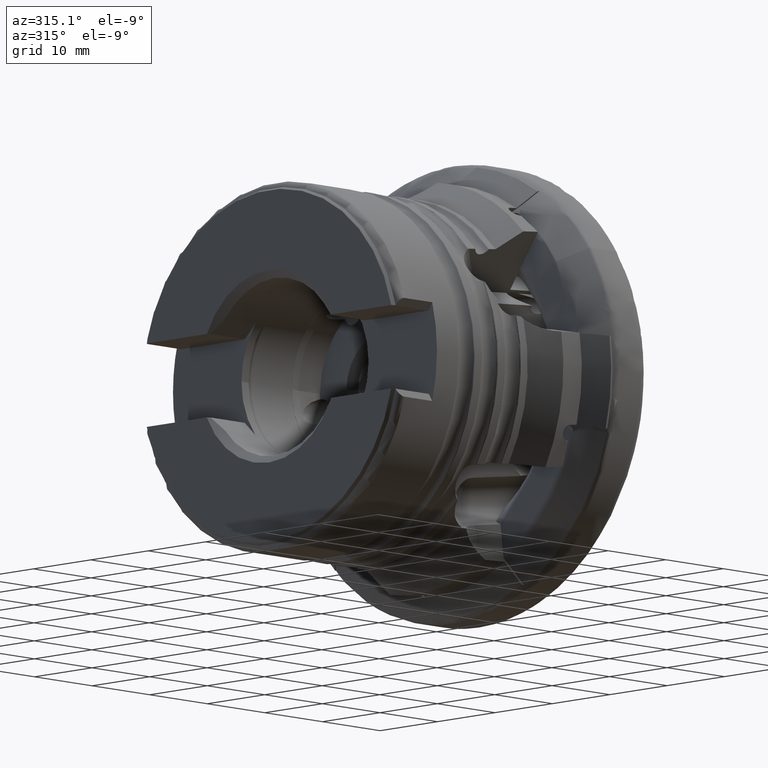
[diagram: clean part render]
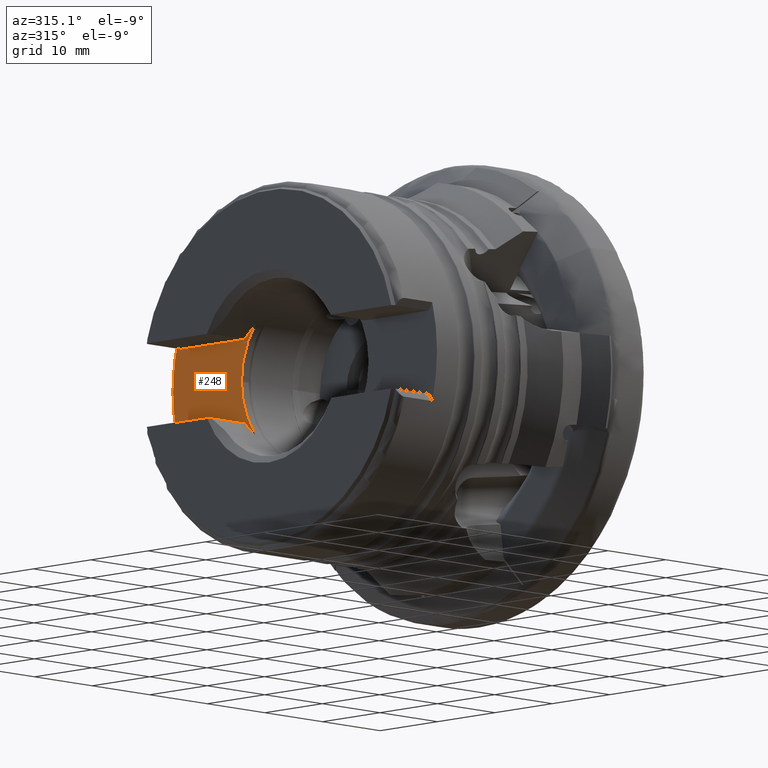
[diagram: same view with one face highlighted and labeled with its STEP entity id]
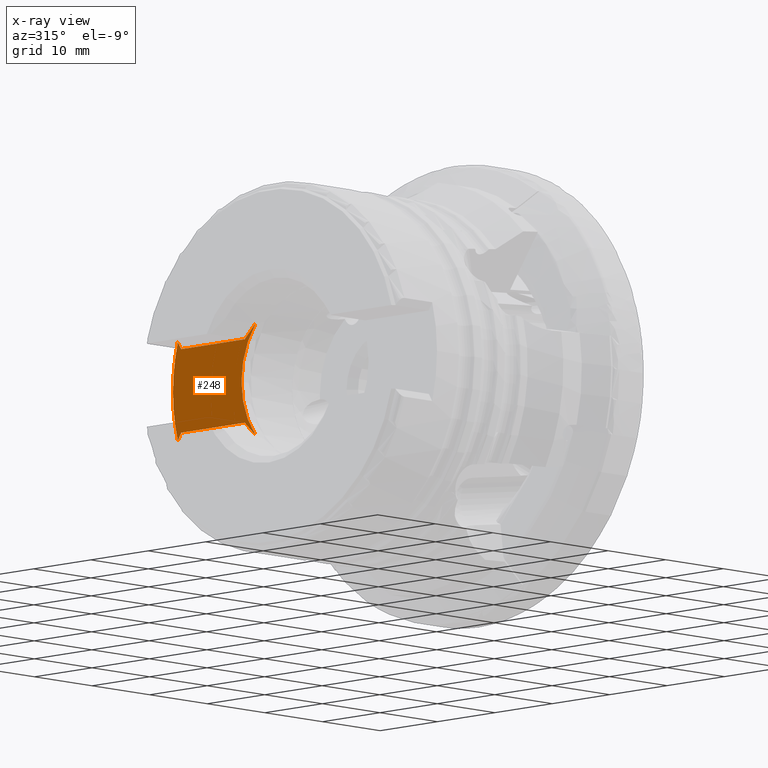
[diagram: x-ray of the same camera — body ghosted, the highlighted face saturated]
A machine part, auxiliary view. The second image highlights one B-rep face of the part: STEP entity #248.
The next image is the same camera in x-ray: the body ghosted, the highlighted face saturated — about 0% of this face is hidden behind the body in this view.
In plain terms, the highlighted planar face has unit normal (1, 0, -0).
Its self-contained STEP definition (entity closure, byte-faithful):
#248 = ADVANCED_FACE ( 'NONE', ( #3949 ), #1375, .F. ) ;
#253 = DIRECTION ( 'NONE',  ( -1.000000000000000000, -0.0000000000000000000, 0.0000000000000000000 ) ) ;
#314 = CIRCLE ( 'NONE', #1761, 23.00000000000000000 ) ;
#317 = VECTOR ( 'NONE', #3011, 1000.000000000000000 ) ;
#604 = ORIENTED_EDGE ( 'NONE', *, *, #2358, .T. ) ;
#851 = ORIENTED_EDGE ( 'NONE', *, *, #7452, .F. ) ;
#1355 = CARTESIAN_POINT ( 'NONE',  ( -32.85000000000000100, -54.99999999999999300, 5.200000000000006400 ) ) ;
#1375 = PLANE ( 'NONE',  #10363 ) ;
#1761 = AXIS2_PLACEMENT_3D ( 'NONE', #4478, #10121, #6082 ) ;
#2082 = ORIENTED_EDGE ( 'NONE', *, *, #8612, .T. ) ;
#2187 = VECTOR ( 'NONE', #5117, 1000.000000000000000 ) ;
#2313 = LINE ( 'NONE', #2886, #8488 ) ;
#2352 = CARTESIAN_POINT ( 'NONE',  ( -32.85000000000000100, -54.99999999999999300, -5.199999999999993100 ) ) ;
#2358 = EDGE_CURVE ( 'NONE', #4634, #10588, #8148, .T. ) ;
#2418 = CARTESIAN_POINT ( 'NONE',  ( -32.85000000000000100, -4.519255179079348000, -36.66209083935127900 ) ) ;
#2564 = LINE ( 'NONE', #1355, #317 ) ;
#2622 = VERTEX_POINT ( 'NONE', #10014 ) ;
#2886 = CARTESIAN_POINT ( 'NONE',  ( -32.85000000000000100, -54.99999999999999300, -5.199999999999993100 ) ) ;
#2891 = AXIS2_PLACEMENT_3D ( 'NONE', #5170, #253, #5971 ) ;
#2938 = ORIENTED_EDGE ( 'NONE', *, *, #7507, .F. ) ;
#3011 = DIRECTION ( 'NONE',  ( -0.0000000000000000000, 1.000000000000000000, -0.0000000000000000000 ) ) ;
#3120 = VECTOR ( 'NONE', #8514, 1000.000000000000100 ) ;
#3238 = VERTEX_POINT ( 'NONE', #4202 ) ;
#3515 = ORIENTED_EDGE ( 'NONE', *, *, #4084, .T. ) ;
#3850 = DIRECTION ( 'NONE',  ( -0.0000000000000000000, 0.5289301325481524700, 0.8486653727368602700 ) ) ;
#3949 = FACE_OUTER_BOUND ( 'NONE', #10139, .T. ) ;
#4084 = EDGE_CURVE ( 'NONE', #9323, #6460, #7415, .T. ) ;
#4117 = DIRECTION ( 'NONE',  ( 1.000000000000000000, 0.0000000000000000000, -0.0000000000000000000 ) ) ;
#4202 = CARTESIAN_POINT ( 'NONE',  ( -32.85000000000000100, 22.16277957983918500, -6.149081337522140700 ) ) ;
#4478 = CARTESIAN_POINT ( 'NONE',  ( -32.85000000000000100, -4.022964735199057300E-015, 0.0000000000000000000 ) ) ;
#4513 = DIRECTION ( 'NONE',  ( -0.0000000000000000000, 1.000000000000000000, -0.0000000000000000000 ) ) ;
#4634 = VERTEX_POINT ( 'NONE', #7583 ) ;
#4851 = VERTEX_POINT ( 'NONE', #5659 ) ;
#4971 = CIRCLE ( 'NONE', #2891, 11.07500000000000100 ) ;
#5117 = DIRECTION ( 'NONE',  ( 0.0000000000000000000, -0.7319172859234436300, -0.6813934887907721100 ) ) ;
#5170 = CARTESIAN_POINT ( 'NONE',  ( -32.85000000000000100, -5.431021718295612500E-015, 0.0000000000000000000 ) ) ;
#5504 = CARTESIAN_POINT ( 'NONE',  ( -32.85000000000000100, 8.620476087058650100, -6.952914283410223100 ) ) ;
#5659 = CARTESIAN_POINT ( 'NONE',  ( -32.85000000000000100, 21.57126526361856400, -5.199999999999993100 ) ) ;
#5778 = CARTESIAN_POINT ( 'NONE',  ( -32.85000000000000100, 22.16277957983918200, 6.149081337522155800 ) ) ;
#5782 = CARTESIAN_POINT ( 'NONE',  ( -32.85000000000000100, 0.1491455770644342600, 29.17166852457226900 ) ) ;
#5971 = DIRECTION ( 'NONE',  ( 0.0000000000000000000, 1.776356839400250500E-015, -1.000000000000000000 ) ) ;
#6082 = DIRECTION ( 'NONE',  ( 0.0000000000000000000, -3.552713678800500900E-015, -1.000000000000000000 ) ) ;
#6460 = VERTEX_POINT ( 'NONE', #8208 ) ;
#6483 = VECTOR ( 'NONE', #3850, 999.9999999999998900 ) ;
#6485 = ORIENTED_EDGE ( 'NONE', *, *, #7372, .T. ) ;
#6487 = LINE ( 'NONE', #9558, #2187 ) ;
#6756 = DIRECTION ( 'NONE',  ( -0.0000000000000000000, 0.0000000000000000000, -1.000000000000000000 ) ) ;
#7372 = EDGE_CURVE ( 'NONE', #10588, #3238, #314, .T. ) ;
#7411 = CARTESIAN_POINT ( 'NONE',  ( -32.85000000000000100, 8.620476087058646500, 6.952914283410230200 ) ) ;
#7415 = LINE ( 'NONE', #10150, #3120 ) ;
#7434 = DIRECTION ( 'NONE',  ( 0.0000000000000000000, -0.5289301325481509100, 0.8486653727368611600 ) ) ;
#7452 = EDGE_CURVE ( 'NONE', #2622, #4851, #2313, .T. ) ;
#7507 = EDGE_CURVE ( 'NONE', #9323, #9957, #4971, .T. ) ;
#7583 = CARTESIAN_POINT ( 'NONE',  ( -32.85000000000000100, 21.57126526361855000, 5.200000000000006400 ) ) ;
#8148 = LINE ( 'NONE', #2418, #6483 ) ;
#8208 = CARTESIAN_POINT ( 'NONE',  ( -32.85000000000000100, 10.50336502843507300, 5.200000000000006400 ) ) ;
#8308 = EDGE_CURVE ( 'NONE', #2622, #9957, #6487, .T. ) ;
#8396 = EDGE_CURVE ( 'NONE', #3238, #4851, #10298, .T. ) ;
#8488 = VECTOR ( 'NONE', #4513, 1000.000000000000000 ) ;
#8514 = DIRECTION ( 'NONE',  ( -0.0000000000000000000, 0.7319172859234435200, -0.6813934887907722200 ) ) ;
#8612 = EDGE_CURVE ( 'NONE', #6460, #4634, #2564, .T. ) ;
#8962 = ORIENTED_EDGE ( 'NONE', *, *, #8396, .T. ) ;
#9323 = VERTEX_POINT ( 'NONE', #7411 ) ;
#9557 = ORIENTED_EDGE ( 'NONE', *, *, #8308, .T. ) ;
#9558 = CARTESIAN_POINT ( 'NONE',  ( -32.85000000000000100, -24.58697845699823900, -37.86807879832872500 ) ) ;
#9957 = VERTEX_POINT ( 'NONE', #5504 ) ;
#10014 = CARTESIAN_POINT ( 'NONE',  ( -32.85000000000000100, 10.50336502843508800, -5.199999999999993100 ) ) ;
#10121 = DIRECTION ( 'NONE',  ( -1.000000000000000000, -0.0000000000000000000, 0.0000000000000000000 ) ) ;
#10139 = EDGE_LOOP ( 'NONE', ( #6485, #8962, #851, #9557, #2938, #3515, #2082, #604 ) ) ;
#10150 = CARTESIAN_POINT ( 'NONE',  ( -32.85000000000000100, -19.40025225819710300, 33.03938909803753900 ) ) ;
#10298 = LINE ( 'NONE', #5782, #10562 ) ;
#10363 = AXIS2_PLACEMENT_3D ( 'NONE', #2352, #4117, #6756 ) ;
#10562 = VECTOR ( 'NONE', #7434, 1000.000000000000000 ) ;
#10588 = VERTEX_POINT ( 'NONE', #5778 ) ;